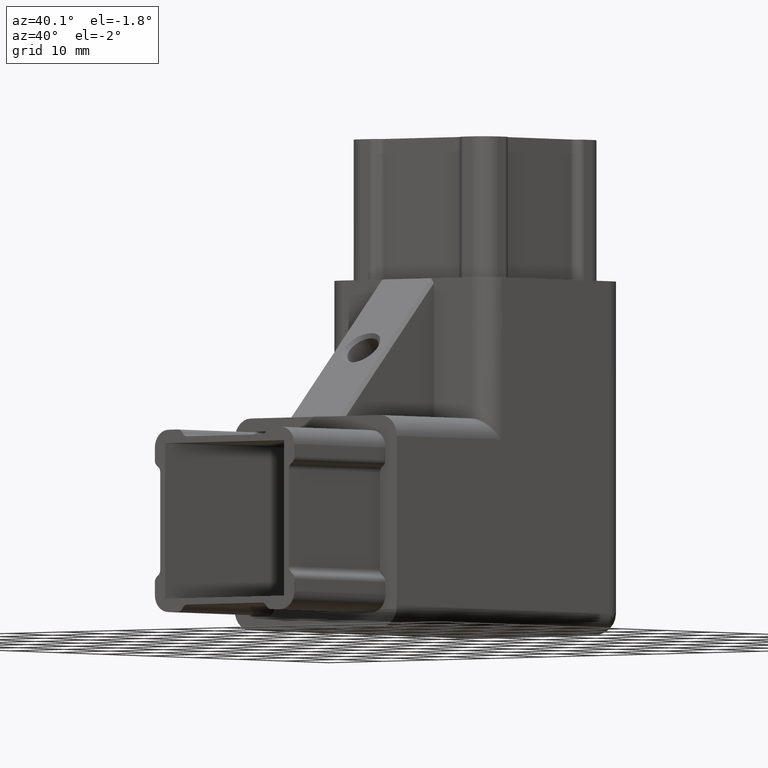
[diagram: clean part render]
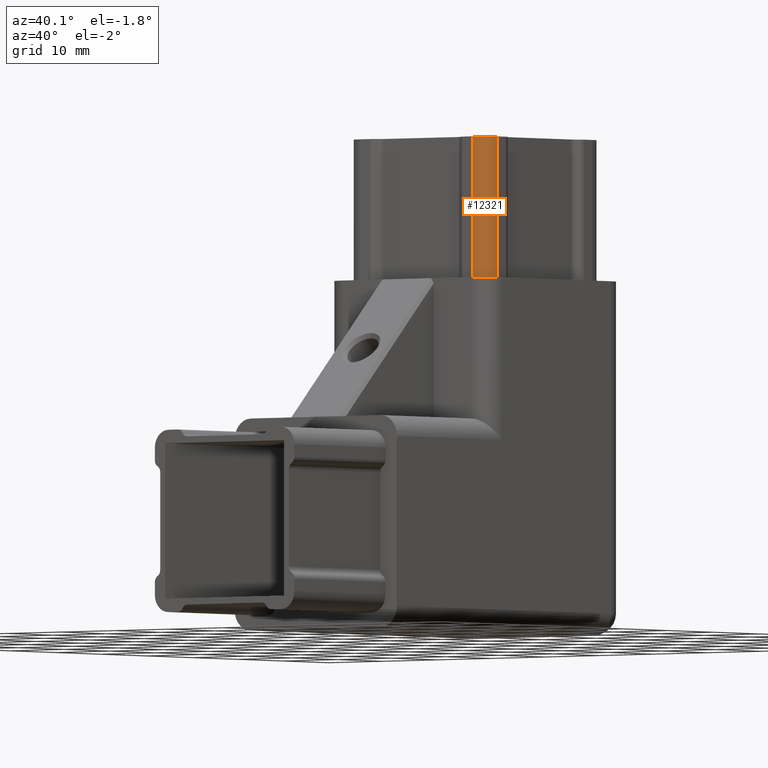
[diagram: same view with one face highlighted and labeled with its STEP entity id]
A machine part, auxiliary view. The second image highlights one B-rep face of the part: STEP entity #12321.
In plain terms, the highlighted cylindrical surface (edge-blend (fillet) strip) has radius 2.5 mm, axis along (0, 0, -1).
Its self-contained STEP definition (entity closure, byte-faithful):
#63 = AXIS2_PLACEMENT_3D ( 'NONE', #12894, #14208, #16792 ) ;
#479 = LINE ( 'NONE', #7132, #15305 ) ;
#1121 = EDGE_CURVE ( 'NONE', #13795, #4537, #5307, .T. ) ;
#2212 = DIRECTION ( 'NONE',  ( -0.0000000000000000000, -0.0000000000000000000, 1.000000000000000000 ) ) ;
#2312 = DIRECTION ( 'NONE',  ( -1.000000000000000000, 0.0000000000000000000, 0.0000000000000000000 ) ) ;
#2868 = AXIS2_PLACEMENT_3D ( 'NONE', #10010, #2212, #7474 ) ;
#3034 = ORIENTED_EDGE ( 'NONE', *, *, #13133, .F. ) ;
#4507 = FACE_OUTER_BOUND ( 'NONE', #12876, .T. ) ;
#4537 = VERTEX_POINT ( 'NONE', #8782 ) ;
#4904 = VECTOR ( 'NONE', #7380, 1000.000000000000000 ) ;
#5307 = LINE ( 'NONE', #16528, #4904 ) ;
#5457 = ORIENTED_EDGE ( 'NONE', *, *, #6876, .F. ) ;
#6876 = EDGE_CURVE ( 'NONE', #11902, #13795, #15532, .T. ) ;
#7132 = CARTESIAN_POINT ( 'NONE',  ( 25.40000000000000200, 22.09999999999999800, 69.99999999999998600 ) ) ;
#7380 = DIRECTION ( 'NONE',  ( 0.0000000000000000000, 0.0000000000000000000, -1.000000000000000000 ) ) ;
#7474 = DIRECTION ( 'NONE',  ( -1.000000000000000000, 0.0000000000000000000, 0.0000000000000000000 ) ) ;
#8169 = EDGE_CURVE ( 'NONE', #8952, #11902, #479, .T. ) ;
#8782 = CARTESIAN_POINT ( 'NONE',  ( 27.90000000000000200, 24.59999999999999800, 49.99999999999998600 ) ) ;
#8952 = VERTEX_POINT ( 'NONE', #10480 ) ;
#9797 = CARTESIAN_POINT ( 'NONE',  ( 27.90000000000000200, 24.59999999999999800, 69.99999999999998600 ) ) ;
#10010 = CARTESIAN_POINT ( 'NONE',  ( 25.40000000000000200, 24.59999999999999800, 69.99999999999998600 ) ) ;
#10480 = CARTESIAN_POINT ( 'NONE',  ( 25.40000000000000200, 22.09999999999999800, 49.99999999999998600 ) ) ;
#11543 = CYLINDRICAL_SURFACE ( 'NONE', #13122, 2.499999999999998700 ) ;
#11902 = VERTEX_POINT ( 'NONE', #14038 ) ;
#12321 = ADVANCED_FACE ( 'NONE', ( #4507 ), #11543, .T. ) ;
#12711 = CARTESIAN_POINT ( 'NONE',  ( 25.40000000000000200, 24.59999999999999800, 69.99999999999998600 ) ) ;
#12767 = CIRCLE ( 'NONE', #63, 2.499999999999998700 ) ;
#12818 = DIRECTION ( 'NONE',  ( 0.0000000000000000000, 0.0000000000000000000, -1.000000000000000000 ) ) ;
#12876 = EDGE_LOOP ( 'NONE', ( #5457, #14094, #3034, #13454 ) ) ;
#12894 = CARTESIAN_POINT ( 'NONE',  ( 25.40000000000000200, 24.59999999999999800, 49.99999999999999300 ) ) ;
#13122 = AXIS2_PLACEMENT_3D ( 'NONE', #12711, #12818, #2312 ) ;
#13133 = EDGE_CURVE ( 'NONE', #4537, #8952, #12767, .T. ) ;
#13454 = ORIENTED_EDGE ( 'NONE', *, *, #1121, .F. ) ;
#13795 = VERTEX_POINT ( 'NONE', #9797 ) ;
#14038 = CARTESIAN_POINT ( 'NONE',  ( 25.40000000000000200, 22.09999999999999800, 69.99999999999998600 ) ) ;
#14094 = ORIENTED_EDGE ( 'NONE', *, *, #8169, .F. ) ;
#14208 = DIRECTION ( 'NONE',  ( 0.0000000000000000000, 2.312964634635743000E-016, -1.000000000000000000 ) ) ;
#15051 = DIRECTION ( 'NONE',  ( -0.0000000000000000000, -0.0000000000000000000, 1.000000000000000000 ) ) ;
#15305 = VECTOR ( 'NONE', #15051, 1000.000000000000000 ) ;
#15532 = CIRCLE ( 'NONE', #2868, 2.499999999999998700 ) ;
#16528 = CARTESIAN_POINT ( 'NONE',  ( 27.90000000000000200, 24.59999999999999800, 69.99999999999998600 ) ) ;
#16792 = DIRECTION ( 'NONE',  ( 0.0000000000000000000, 1.000000000000000000, 0.0000000000000000000 ) ) ;